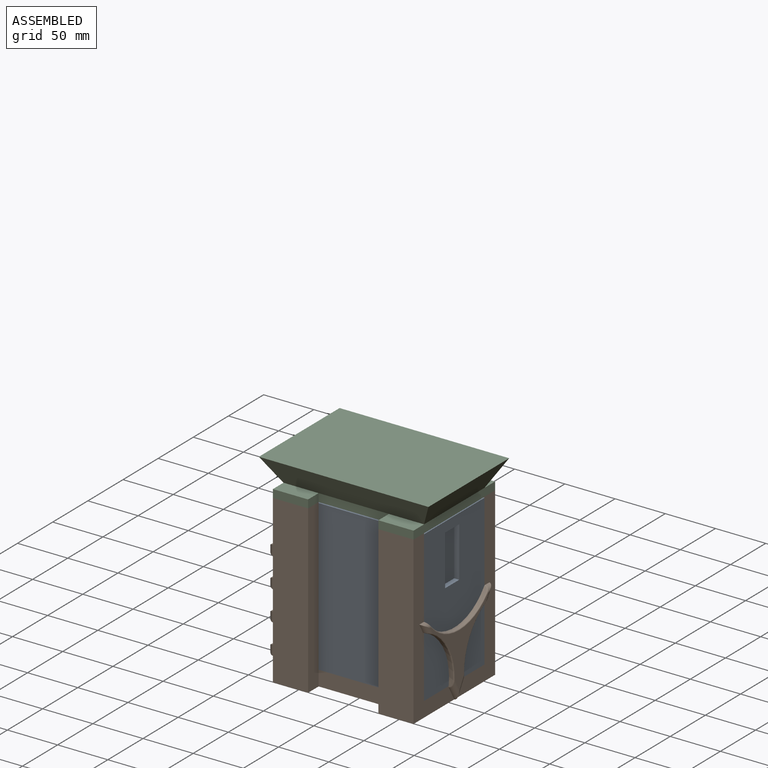
[diagram: assembled view]
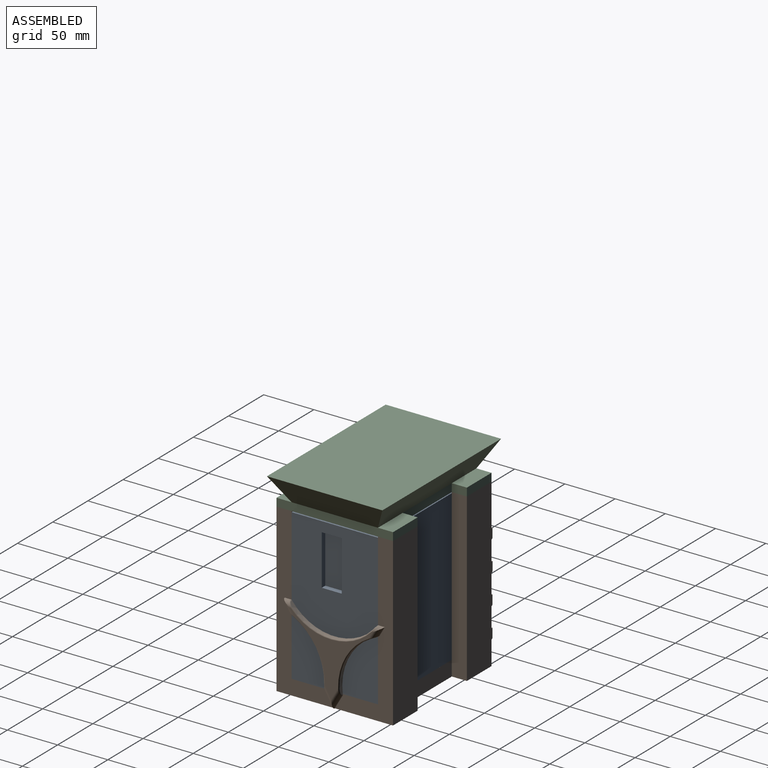
[diagram: assembled view, second angle]
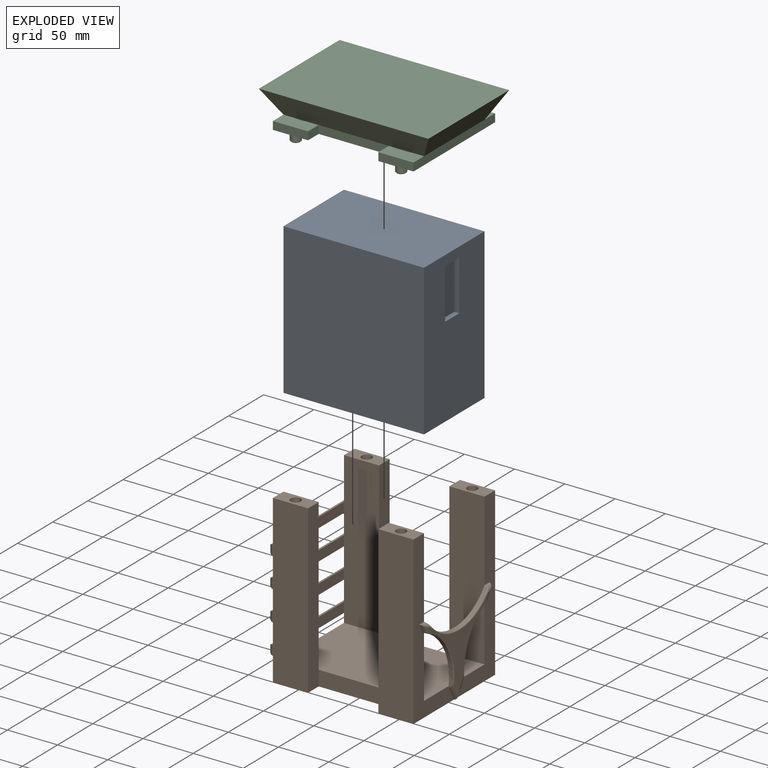
[diagram: exploded view]
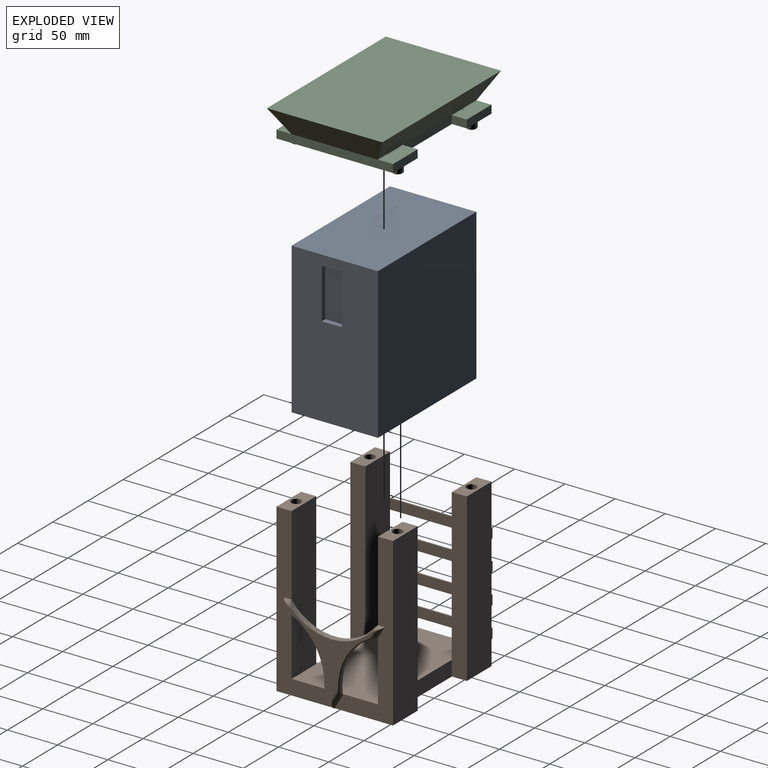
[diagram: exploded view, second angle]
ASSEMBLY  parts=3 mates=2
PART A: 16 faces, bbox 140x150x86 mm
  f0: plane 150x86mm, normal (1,0,0), area 12242.1mm2, adj f2,f3,f4,f5,f11,f12,f13,f14
  f1: plane 150x86mm, normal (-1,0,0), area 11900mm2, adj f2,f3,f4,f5,f6,f7,f8,f9
  f2: plane 140x86mm, normal (0,1,0), area 12040mm2, adj f0,f1,f4,f5
  f3: plane 140x86mm, normal (0,-1,0), area 12040mm2, adj f0,f1,f4,f5
  f4: plane 150x140mm, normal (0,0,1), area 21000mm2, adj f0,f1,f2,f3
  f5: plane 150x140mm, normal (0,0,-1), area 21000mm2, adj f0,f1,f2,f3
  f6: plane 50x5mm, normal (0,0,-1), area 250mm2, adj f1,f7,f9,f10
  f7: plane 20x5mm, normal (0,-1,0), area 100mm2, adj f1,f6,f8,f10
  f8: plane 50x5mm, normal (0,0,1), area 250mm2, adj f1,f7,f9,f10
  f9: plane 20x5mm, normal (0,1,0), area 100mm2, adj f1,f6,f8,f10
  f10: plane 50x20mm, normal (-1,0,0), area 1000mm2, adj f6,f7,f8,f9
  f11: plane 25x25mm, normal (0,-1,0), area 625mm2, adj f0,f12,f14,f15
  f12: plane 25x16.5mm, normal (0,0,-1), area 412.5mm2, adj f0,f11,f13,f15
  f13: cylinder r=12.5mm len=25mm, axis (1,0,0), area 981.7mm2, adj f0,f12,f14,f15
  f14: plane 25x16.5mm, normal (0,0,1), area 412.5mm2, adj f0,f11,f13,f15
  f15: plane 29x25mm, normal (1,0,0), area 657.9mm2, adj f11,f12,f13,f14
PART B: 83 faces, bbox 150.1x116x166 mm
  f0: plane 86x71.16mm, normal (-1,0,0), area 1534.7mm2, adj f11,f25,f29,f57,f58,f59,f66,f68
  f1: plane 82.36x71.32mm, normal (1,0,0), area 1229.1mm2, adj f60,f61,f62,f63,f64,f65,f67,f70
  f2: plane 166.01x58.01mm, normal (1,0,0), area 3031.2mm2, adj f11,f23,f24,f25,f26,f58,f60,f61
  f3: plane 116x23.92mm, normal (-1,0,0), area 2007.7mm2, adj f11,f15,f17,f24,f27,f31,f44
  f4: plane 19.9x15mm, normal (-1,0,0), area 298.5mm2, adj f15,f27,f41,f48
  f5: plane 19.9x15mm, normal (-1,0,0), area 298.5mm2, adj f17,f31,f41,f48
  f6: plane 19.9x15mm, normal (-1,0,0), area 298.5mm2, adj f15,f27,f45,f49
  f7: plane 19.9x15mm, normal (-1,0,0), area 298.5mm2, adj f17,f31,f45,f49
  f8: plane 19.9x15mm, normal (-1,0,0), area 298.5mm2, adj f15,f27,f52,f56
  f9: plane 19.9x15mm, normal (-1,0,0), area 298.5mm2, adj f17,f31,f52,f56
  f10: plane 41.98x15mm, normal (-1,0,0), area 629.6mm2, adj f15,f27,f28,f53
  f11: plane 140x86mm, normal (0,0,1), area 12040mm2, adj f0,f2,f3,f13,f19,f22,f25,f27
  f12: plane 166x15mm, normal (-1,0,0), area 2490mm2, adj f13,f23,f24,f25,f26
  f13: plane 70x15mm, normal (0,1,0), area 1050mm2, adj f11,f12,f14,f24
  f14: plane 166x15mm, normal (1,0,0), area 2490mm2, adj f13,f15,f24,f27,f28
  f15: plane 166x35mm, normal (0,1,0), area 5810mm2, adj f3,f4,f6,f8,f10,f14,f24,f28
  f16: plane 41.98x15mm, normal (-1,0,0), area 629.6mm2, adj f17,f31,f32,f53
  f17: plane 166x35mm, normal (0,-1,0), area 5810mm2, adj f3,f5,f7,f9,f16,f18,f24,f32
  f18: plane 166x15mm, normal (1,0,0), area 2490mm2, adj f17,f19,f24,f31,f32
  f19: plane 70x15mm, normal (0,-1,0), area 1050mm2, adj f11,f18,f20,f24
  f20: plane 166x15mm, normal (-1,0,0), area 2490mm2, adj f19,f21,f24,f29,f30
  f21: plane 166x35mm, normal (0,-1,0), area 5810mm2, adj f20,f22,f24,f30
  f22: plane 166.01x58.01mm, normal (1,0,0), area 3031.2mm2, adj f11,f21,f24,f29,f30,f59,f63,f64
  f23: plane 166x35mm, normal (0,1,0), area 5810mm2, adj f2,f12,f24,f26
  f24: plane 140x116mm, normal (0,0,-1), area 14140mm2, adj f2,f3,f12,f13,f14,f15,f17,f18
  f25: plane 151x35mm, normal (0,-1,0), area 5285mm2, adj f0,f2,f11,f12,f26
  f26: plane 35x15mm, normal (0,0,1), area 445.7mm2, adj f2,f12,f23,f25,f82
  f27: plane 151x35mm, normal (0,-1,0), area 5285mm2, adj f3,f4,f6,f8,f10,f11,f14,f28
  f28: plane 35x15mm, normal (0,0,1), area 445.7mm2, adj f10,f14,f15,f27,f80
  f29: plane 151x35mm, normal (0,1,0), area 5285mm2, adj f0,f11,f20,f22,f30
  f30: plane 35x15mm, normal (0,0,1), area 445.7mm2, adj f20,f21,f22,f29,f78
  f31: plane 151x35mm, normal (0,1,0), area 5285mm2, adj f3,f5,f7,f9,f11,f16,f18,f32
  f32: plane 35x15mm, normal (0,0,1), area 445.7mm2, adj f16,f17,f18,f31,f76
  f33: plane 86x10.1mm, normal (1,0,0), area 868.6mm2, adj f27,f31,f53,f56
  f34: plane 106x0.1mm, normal (-1,0,0), area 10.6mm2, adj f53,f54,f55,f56
  f35: plane 86x10.1mm, normal (1,0,0), area 868.6mm2, adj f27,f31,f49,f52
  f36: plane 106x0.1mm, normal (-1,0,0), area 10.6mm2, adj f49,f50,f51,f52
  f37: plane 86x10.1mm, normal (1,0,0), area 868.6mm2, adj f27,f31,f45,f48
  f38: plane 106x0.1mm, normal (-1,0,0), area 10.6mm2, adj f45,f46,f47,f48
  f39: plane 86x10.1mm, normal (1,0,0), area 868.6mm2, adj f27,f31,f41,f44
  f40: plane 106x0.1mm, normal (-1,0,0), area 10.6mm2, adj f41,f42,f43,f44
  f41: cylinder r=5mm len=116mm, axis (0,-1,0), area 882.5mm2, adj f4,f5,f39,f40,f42,f43
  f42: cylinder r=5mm len=10.1mm, axis (0,0,1), area 50.8mm2, adj f15,f40,f41,f44
  f43: cylinder r=5mm len=10.1mm, axis (0,0,-1), area 50.8mm2, adj f17,f40,f41,f44
  f44: cylinder r=5mm len=116mm, axis (0,1,0), area 882.5mm2, adj f3,f39,f40,f42,f43
  f45: cylinder r=5mm len=116mm, axis (0,-1,0), area 882.5mm2, adj f6,f7,f37,f38,f46,f47
  f46: cylinder r=5mm len=10.1mm, axis (0,0,1), area 50.8mm2, adj f15,f38,f45,f48
  f47: cylinder r=5mm len=10.1mm, axis (0,0,-1), area 50.8mm2, adj f17,f38,f45,f48
  f48: cylinder r=5mm len=116mm, axis (0,1,0), area 882.5mm2, adj f4,f5,f37,f38,f46,f47
  f49: cylinder r=5mm len=116mm, axis (0,1,0), area 882.5mm2, adj f6,f7,f35,f36,f50,f51
  f50: cylinder r=5mm len=10.1mm, axis (0,0,1), area 50.8mm2, adj f15,f36,f49,f52
  f51: cylinder r=5mm len=10.1mm, axis (0,0,-1), area 50.8mm2, adj f17,f36,f49,f52
  f52: cylinder r=5mm len=116mm, axis (0,-1,0), area 882.5mm2, adj f8,f9,f35,f36,f50,f51
  f53: cylinder r=5mm len=116mm, axis (0,-1,0), area 882.5mm2, adj f10,f16,f33,f34,f54,f55
  f54: cylinder r=5mm len=10.1mm, axis (0,0,1), area 50.8mm2, adj f15,f34,f53,f56
  f55: cylinder r=5mm len=10.1mm, axis (0,0,-1), area 50.8mm2, adj f17,f34,f53,f56
  f56: cylinder r=5mm len=116mm, axis (0,1,0), area 882.5mm2, adj f8,f9,f33,f34,f54,f55
  f57: cylinder r=53.61mm len=85.52mm, axis (1,0,0), area 387.4mm2, adj f0,f66,f67,f68
  f58: cylinder r=58.24mm len=62.35mm, axis (1,0,0), area 299.1mm2, adj f0,f2,f69,f70,f71
  f59: cylinder r=58.24mm len=62.35mm, axis (1,0,0), area 299.1mm2, adj f0,f22,f72,f73,f74
  f60: cylinder r=5mm len=9.62mm, axis (0,1,0), area 33.8mm2, adj f1,f2,f61,f66
  f61: cylinder r=5mm len=16.6mm, axis (0,-0.5,-0.87), area 73.6mm2, adj f1,f2,f60,f69
  f62: cylinder r=5mm len=21.28mm, axis (0,-0.5,-0.87), area 116mm2, adj f1,f2,f63,f71
  f63: cylinder r=5mm len=21.28mm, axis (0,-0.5,0.87), area 116mm2, adj f1,f22,f62,f74
  f64: cylinder r=5mm len=16.6mm, axis (0,-0.5,0.87), area 73.6mm2, adj f1,f22,f65,f72
  f65: cylinder r=5mm len=9.62mm, axis (0,1,0), area 33.8mm2, adj f1,f22,f64,f68
  f66: bspline ~5.77x5.59mm, area 9.4mm2, adj f0,f2,f57,f60,f67
  f67: torus R=54.61mm, axis (1,0,0), area 140.4mm2, adj f1,f57,f66,f68
  f68: bspline ~5.77x5.59mm, area 9.4mm2, adj f0,f22,f57,f65,f67
  f69: bspline ~8.91x5.52mm, area 10.1mm2, adj f2,f58,f61,f70
  f70: torus R=59.24mm, axis (1,0,0), area 100.9mm2, adj f1,f58,f69,f71
  f71: bspline ~9.34x5.52mm, area 10.1mm2, adj f2,f58,f62,f70
  f72: bspline ~8.91x5.52mm, area 10.1mm2, adj f22,f59,f64,f73
  f73: torus R=59.24mm, axis (1,0,0), area 100.9mm2, adj f1,f59,f72,f74
  f74: bspline ~9.34x5.52mm, area 10.1mm2, adj f22,f59,f63,f73
  f75: cone r=0mm half-angle=59deg, axis (0,0,1), area 92.5mm2, adj f76
  f76: cylinder r=5.03mm len=14mm, axis (0,0,1), area 442mm2, adj f32,f75
  f77: cone r=0mm half-angle=59deg, axis (0,0,1), area 92.5mm2, adj f78
  f78: cylinder r=5.03mm len=14mm, axis (0,0,1), area 442mm2, adj f30,f77
  f79: cone r=0mm half-angle=59deg, axis (0,0,1), area 92.5mm2, adj f80
  f80: cylinder r=5.03mm len=14mm, axis (0,0,1), area 442mm2, adj f28,f79
  f81: cone r=0mm half-angle=59deg, axis (0,0,1), area 92.5mm2, adj f82
  f82: cylinder r=5.03mm len=14mm, axis (0,0,1), area 442mm2, adj f26,f81
PART C: 34 faces, bbox 168.9x116x41 mm
  f0: plane 35x15mm, normal (0,0,1), area 525mm2, adj f3,f4,f5,f29
  f1: plane 35x15mm, normal (0,0,1), area 525mm2, adj f3,f13,f14,f31
  f2: plane 35x15mm, normal (0,0,1), area 525mm2, adj f9,f10,f11,f31
  f3: plane 116x8mm, normal (-1,0,0), area 928mm2, adj f0,f1,f4,f14,f15,f32
  f4: plane 35x8mm, normal (0,-1,0), area 280mm2, adj f0,f3,f5,f15
  f5: plane 15x8mm, normal (1,0,0), area 120mm2, adj f0,f4,f6,f15
  f6: plane 70x8mm, normal (0,-1,0), area 560mm2, adj f5,f7,f15,f29
  f7: plane 15x8mm, normal (-1,0,0), area 120mm2, adj f6,f8,f15,f16
  f8: plane 35x8mm, normal (0,-1,0), area 280mm2, adj f7,f9,f15,f16
  f9: plane 116x8mm, normal (1,0,0), area 928mm2, adj f2,f8,f10,f15,f16,f30
  f10: plane 35x8mm, normal (0,1,0), area 280mm2, adj f2,f9,f11,f15
  f11: plane 15x8mm, normal (-1,0,0), area 120mm2, adj f2,f10,f12,f15
  f12: plane 70x8mm, normal (0,1,0), area 560mm2, adj f11,f13,f15,f31
  f13: plane 15x8mm, normal (1,0,0), area 120mm2, adj f1,f12,f14,f15
  f14: plane 35x8mm, normal (0,1,0), area 280mm2, adj f1,f3,f13,f15
  f15: plane 140x116mm, normal (0,0,-1), area 13829mm2, adj f3,f4,f5,f6,f7,f8,f9,f10
  f16: plane 35x15mm, normal (0,0,1), area 525mm2, adj f7,f8,f9,f29
  f17: cylinder r=4.98mm len=9.95mm, axis (0,0,1), area 225.1mm2, adj f15,f28
  f18: plane 8.35x8.35mm, normal (0,0,-1), area 54.8mm2, adj f28
  f19: cylinder r=4.98mm len=9.95mm, axis (0,0,1), area 225.1mm2, adj f15,f26
  f20: plane 8.35x8.35mm, normal (0,0,-1), area 54.8mm2, adj f26
  f21: cylinder r=4.98mm len=9.95mm, axis (0,0,1), area 225.1mm2, adj f15,f25
  f22: plane 8.35x8.35mm, normal (0,0,-1), area 54.8mm2, adj f25
  f23: cylinder r=4.98mm len=9.95mm, axis (0,0,1), area 225.1mm2, adj f15,f27
  f24: plane 8.35x8.35mm, normal (0,0,-1), area 54.8mm2, adj f27
  f25: cone r=4.98mm half-angle=45deg, axis (0,0,1), area 32.5mm2, adj f21,f22
  f26: cone r=4.17mm half-angle=45deg, axis (0,0,1), area 32.5mm2, adj f19,f20
  f27: cone r=4.17mm half-angle=45deg, axis (0,0,1), area 32.5mm2, adj f23,f24
  f28: cone r=4.98mm half-angle=45deg, axis (0,0,1), area 32.5mm2, adj f17,f18
  f29: plane 168.87x25mm, normal (0,-0.87,-0.5), area 4458.1mm2, adj f0,f6,f16,f30,f32,f33
  f30: plane 114.87x25mm, normal (0.87,0,-0.5), area 2899.3mm2, adj f9,f29,f31,f33
  f31: plane 168.87x25mm, normal (0,0.87,-0.5), area 4458.1mm2, adj f1,f2,f12,f30,f32,f33
  f32: plane 114.87x25mm, normal (-0.87,0,-0.5), area 2899.3mm2, adj f3,f29,f31,f33
  f33: plane 168.87x114.87mm, normal (0,0,1), area 19397.4mm2, adj f29,f30,f31,f32
PLACE A rot(axis=(0,0.71,0.71),180deg) t=(0,-43,75)mm
PLACE B at identity
PLACE C t=(0,0,159)mm
MATE slider C.f15 <-> B.f26  axis (0,0,-1) through (70,58,151)mm
MATE slider A.f3 <-> B.f11  axis (0,0,-1) through (0,0,0)mm
